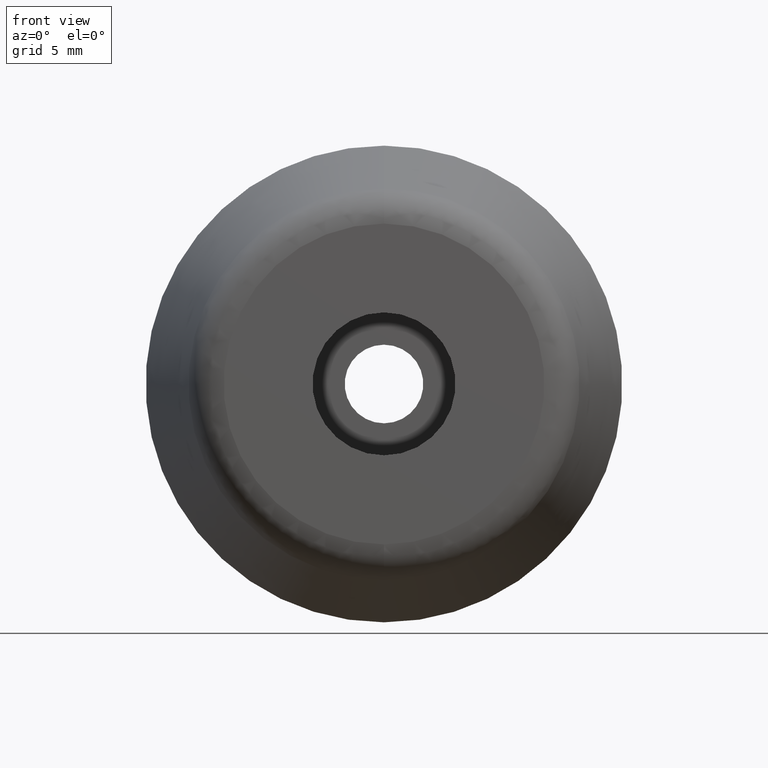
[diagram: clean part render]
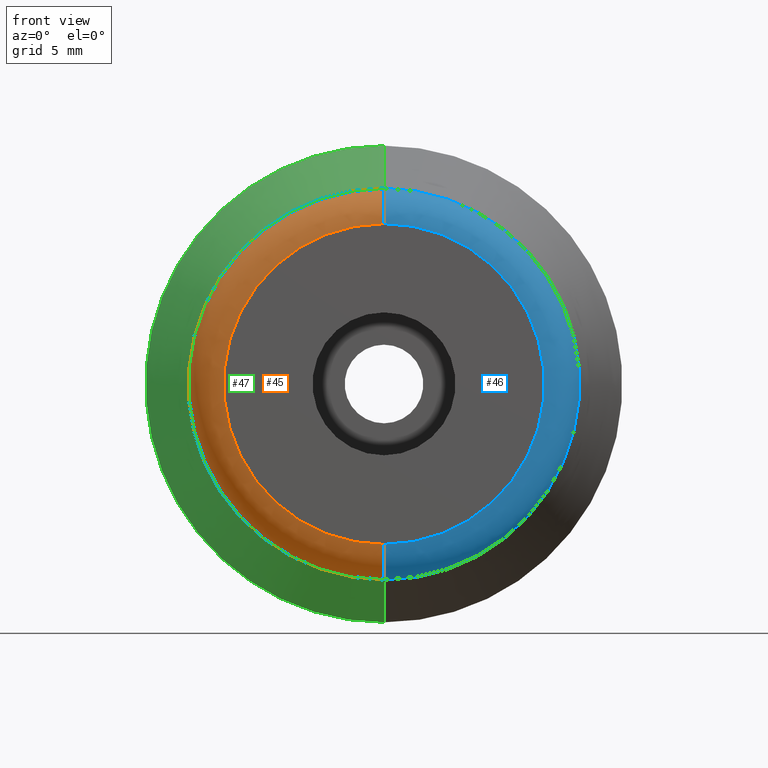
[diagram: same view with three faces highlighted in distinct colors, each labeled with its STEP entity id]
A machine part, front view with three faces highlighted in distinct colors.
Their STEP definitions:

[orange] entity #45 — the highlighted face is a freeform B-spline surface patch.
#45=ADVANCED_FACE('',(#105),#104,.T.);
#104=( BOUNDED_SURFACE() B_SPLINE_SURFACE( 2,2,((#192,#193,#194,#195,#196),(#197,#198,#199,#200,#201),(#202,#203,#204,#205,#206),(#207,#208,#209,#210,#211),(#212,#213,#214,#215,#216)), .UNSPECIFIED.,.F.,.F.,.F.) B_SPLINE_SURFACE_WITH_KNOTS((3,2,3),(3,2,3),(0.00000000000E+00,5.00000000000E-01,1.00000000000E+00),(0.00000000000E+00,5.00000000000E-01,1.00000000000E+00), .UNSPECIFIED. ) GEOMETRIC_REPRESENTATION_ITEM() RATIONAL_B_SPLINE_SURFACE(((1.00000000000E+00,7.63019982473E-01,1.00000000000E+00,7.63019982473E-01,1.00000000000E+00),(7.07106781187E-01,5.39536603787E-01,7.07106781187E-01,5.39536603787E-01,7.07106781187E-01),(1.00000000000E+00,7.63019982473E-01,1.00000000000E+00,7.63019982473E-01,1.00000000000E+00),(7.07106781187E-01,5.39536603787E-01,7.07106781187E-01,5.39536603787E-01,7.07106781187E-01),(1.00000000000E+00,7.63019982473E-01,1.00000000000E+00,7.63019982473E-01,1.00000000000E+00))) REPRESENTATION_ITEM('') SURFACE() );
#105=FACE_OUTER_BOUND('',#217,.T.);
#192=CARTESIAN_POINT('',(-1.14136079967E-14,-1.07465984810E+01,8.20890025317E+00));
#193=CARTESIAN_POINT('',(-1.13880259389E-14,-1.20000000000E+01,8.00000000000E+00));
#194=CARTESIAN_POINT('',(-1.12324163567E-14,-1.20000000000E+01,6.72930936743E+00));
#195=CARTESIAN_POINT('',(-1.10768067744E-14,-1.20000000000E+01,5.45861873485E+00));
#196=CARTESIAN_POINT('',(-1.10512247167E-14,-1.07465984810E+01,5.24971848168E+00));
#197=CARTESIAN_POINT('',(-8.20890025317E+00,-1.07465984810E+01,8.20890025317E+00));
#198=CARTESIAN_POINT('',(-8.00000000000E+00,-1.20000000000E+01,8.00000000000E+00));
#199=CARTESIAN_POINT('',(-6.72930936743E+00,-1.20000000000E+01,6.72930936743E+00));
#200=CARTESIAN_POINT('',(-5.45861873485E+00,-1.20000000000E+01,5.45861873485E+00));
#201=CARTESIAN_POINT('',(-5.24971848168E+00,-1.07465984810E+01,5.24971848168E+00));
#202=CARTESIAN_POINT('',(-8.20890025317E+00,-1.07465984810E+01,-5.02616969815E-16));
#203=CARTESIAN_POINT('',(-8.00000000000E+00,-1.20000000000E+01,-4.89826363399E-16));
#204=CARTESIAN_POINT('',(-6.72930936743E+00,-1.20000000000E+01,-4.12024141954E-16));
#205=CARTESIAN_POINT('',(-5.45861873485E+00,-1.20000000000E+01,-3.34221920509E-16));
#206=CARTESIAN_POINT('',(-5.24971848168E+00,-1.07465984810E+01,-3.21431314094E-16));
#207=CARTESIAN_POINT('',(-8.20890025317E+00,-1.07465984810E+01,-8.20890025317E+00));
#208=CARTESIAN_POINT('',(-8.00000000000E+00,-1.20000000000E+01,-8.00000000000E+00));
#209=CARTESIAN_POINT('',(-6.72930936743E+00,-1.20000000000E+01,-6.72930936743E+00));
#210=CARTESIAN_POINT('',(-5.45861873485E+00,-1.20000000000E+01,-5.45861873485E+00));
#211=CARTESIAN_POINT('',(-5.24971848168E+00,-1.07465984810E+01,-5.24971848168E+00));
#212=CARTESIAN_POINT('',(-1.04083740570E-14,-1.07465984810E+01,-8.20890025317E+00));
#213=CARTESIAN_POINT('',(-1.04083732121E-14,-1.20000000000E+01,-8.00000000000E+00));
#214=CARTESIAN_POINT('',(-1.04083680728E-14,-1.20000000000E+01,-6.72930936743E+00));
#215=CARTESIAN_POINT('',(-1.04083629334E-14,-1.20000000000E+01,-5.45861873485E+00));
#216=CARTESIAN_POINT('',(-1.04083620885E-14,-1.07465984810E+01,-5.24971848168E+00));
#217=EDGE_LOOP('',(#296,#297,#298,#299));
#296=ORIENTED_EDGE('',*,*,#325,.F.);
#297=ORIENTED_EDGE('',*,*,#334,.F.);
#298=ORIENTED_EDGE('',*,*,#335,.T.);
#299=ORIENTED_EDGE('',*,*,#336,.T.);
#325=EDGE_CURVE('',#371,#370,#378,.T.);
#334=EDGE_CURVE('',#438,#371,#439,.T.);
#335=EDGE_CURVE('',#438,#445,#446,.T.);
#336=EDGE_CURVE('',#445,#370,#452,.T.);
#370=VERTEX_POINT('',#508);
#371=VERTEX_POINT('',#509);
#378=CIRCLE('',#517,6.72930936743E+00);
#438=VERTEX_POINT('',#552);
#439=(BOUNDED_CURVE() B_SPLINE_CURVE(2,(#553,#554,#555),.UNSPECIFIED.,.F.,.F.) B_SPLINE_CURVE_WITH_KNOTS((3,3),(0.00000000000E+00,5.00000000000E-01),.UNSPECIFIED.) CURVE() GEOMETRIC_REPRESENTATION_ITEM() RATIONAL_B_SPLINE_CURVE((1.00000000000E+00,7.63019982473E-01,1.00000000000E+00)) REPRESENTATION_ITEM('') );
#445=VERTEX_POINT('',#556);
#446=CIRCLE('',#560,8.20890025317E+00);
#452=(BOUNDED_CURVE() B_SPLINE_CURVE(3,(#561,#562,#563,#564,#565),.UNSPECIFIED.,.F.,.F.) B_SPLINE_CURVE_WITH_KNOTS((4,1,4),(0.00000000000E+00,2.50000002220E-01,5.00000003958E-01),.UNSPECIFIED.) CURVE() GEOMETRIC_REPRESENTATION_ITEM() RATIONAL_B_SPLINE_CURVE((1.00000000000E+00,1.00000000000E+00,1.00000000000E+00,1.00000000000E+00,1.00000000000E+00)) REPRESENTATION_ITEM('') );
#508=CARTESIAN_POINT('',(-1.06581410364E-14,-1.20000000000E+01,-6.72930936743E+00));
#509=CARTESIAN_POINT('',(-1.06581410364E-14,-1.20000000000E+01,6.72930936743E+00));
#514=CARTESIAN_POINT('',(-1.06581410364E-14,-1.20000000000E+01,0.00000000000E+00));
#515=DIRECTION('',(0.00000000000E+00,-1.00000000000E+00,-0.00000000000E+00));
#516=DIRECTION('',(-1.22460635382E-16,0.00000000000E+00,-1.00000000000E+00));
#517=AXIS2_PLACEMENT_3D('',#514,#515,#516);
#552=CARTESIAN_POINT('',(-1.00660220899E-14,-1.07465984810E+01,8.20890025317E+00));
#553=CARTESIAN_POINT('',(-1.14136079967E-14,-1.07465984810E+01,8.20890025317E+00));
#554=CARTESIAN_POINT('',(-1.13880259389E-14,-1.20000000000E+01,8.00000000000E+00));
#555=CARTESIAN_POINT('',(-1.12324163567E-14,-1.20000000000E+01,6.72930936743E+00));
#556=CARTESIAN_POINT('',(-1.06581410364E-14,-1.07465984810E+01,-8.20890025317E+00));
#557=CARTESIAN_POINT('',(-1.06581410364E-14,-1.07465984810E+01,0.00000000000E+00));
#558=DIRECTION('',(0.00000000000E+00,-1.00000000000E+00,-0.00000000000E+00));
#559=DIRECTION('',(-1.22460635382E-16,0.00000000000E+00,-1.00000000000E+00));
#560=AXIS2_PLACEMENT_3D('',#557,#558,#559);
#561=CARTESIAN_POINT('',(-8.88178419700E-15,-1.07465984810E+01,-8.20890025317E+00));
#562=CARTESIAN_POINT('',(-8.99928915500E-15,-1.10910034755E+01,-8.15365053234E+00));
#563=CARTESIAN_POINT('',(-9.31784344406E-15,-1.17424972966E+01,-7.78186247308E+00));
#564=CARTESIAN_POINT('',(-9.64492080273E-15,-1.20021218469E+01,-7.07811134348E+00));
#565=CARTESIAN_POINT('',(-9.76996261117E-15,-1.20000000000E+01,-6.72930935207E+00));

[blue] entity #46 — the highlighted face is a freeform B-spline surface patch.
#46=ADVANCED_FACE('',(#115),#114,.T.);
#114=( BOUNDED_SURFACE() B_SPLINE_SURFACE( 2,2,((#218,#219,#220,#221,#222),(#223,#224,#225,#226,#227),(#228,#229,#230,#231,#232),(#233,#234,#235,#236,#237),(#238,#239,#240,#241,#242)), .UNSPECIFIED.,.F.,.F.,.F.) B_SPLINE_SURFACE_WITH_KNOTS((3,2,3),(3,2,3),(0.00000000000E+00,5.00000000000E-01,1.00000000000E+00),(0.00000000000E+00,5.00000000000E-01,1.00000000000E+00), .UNSPECIFIED. ) GEOMETRIC_REPRESENTATION_ITEM() RATIONAL_B_SPLINE_SURFACE(((1.00000000000E+00,7.63019982473E-01,1.00000000000E+00,7.63019982473E-01,1.00000000000E+00),(7.07106781187E-01,5.39536603787E-01,7.07106781187E-01,5.39536603787E-01,7.07106781187E-01),(1.00000000000E+00,7.63019982473E-01,1.00000000000E+00,7.63019982473E-01,1.00000000000E+00),(7.07106781187E-01,5.39536603787E-01,7.07106781187E-01,5.39536603787E-01,7.07106781187E-01),(1.00000000000E+00,7.63019982473E-01,1.00000000000E+00,7.63019982473E-01,1.00000000000E+00))) REPRESENTATION_ITEM('') SURFACE() );
#115=FACE_OUTER_BOUND('',#243,.T.);
#218=CARTESIAN_POINT('',(-1.04083740570E-14,-1.07465984810E+01,-8.20890025317E+00));
#219=CARTESIAN_POINT('',(-1.04083732121E-14,-1.20000000000E+01,-8.00000000000E+00));
#220=CARTESIAN_POINT('',(-1.04083680728E-14,-1.20000000000E+01,-6.72930936743E+00));
#221=CARTESIAN_POINT('',(-1.04083629334E-14,-1.20000000000E+01,-5.45861873485E+00));
#222=CARTESIAN_POINT('',(-1.04083620885E-14,-1.07465984810E+01,-5.24971848168E+00));
#223=CARTESIAN_POINT('',(8.20890025317E+00,-1.07465984810E+01,-8.20890025317E+00));
#224=CARTESIAN_POINT('',(8.00000000000E+00,-1.20000000000E+01,-8.00000000000E+00));
#225=CARTESIAN_POINT('',(6.72930936743E+00,-1.20000000000E+01,-6.72930936743E+00));
#226=CARTESIAN_POINT('',(5.45861873485E+00,-1.20000000000E+01,-5.45861873485E+00));
#227=CARTESIAN_POINT('',(5.24971848168E+00,-1.07465984810E+01,-5.24971848168E+00));
#228=CARTESIAN_POINT('',(8.20890025317E+00,-1.07465984810E+01,-5.02683372142E-16));
#229=CARTESIAN_POINT('',(8.00000000000E+00,-1.20000000000E+01,-4.89891075919E-16));
#230=CARTESIAN_POINT('',(6.72930936743E+00,-1.20000000000E+01,-4.12078575775E-16));
#231=CARTESIAN_POINT('',(5.45861873485E+00,-1.20000000000E+01,-3.34266075631E-16));
#232=CARTESIAN_POINT('',(5.24971848168E+00,-1.07465984810E+01,-3.21473779408E-16));
#233=CARTESIAN_POINT('',(8.20890025317E+00,-1.07465984810E+01,8.20890025317E+00));
#234=CARTESIAN_POINT('',(8.00000000000E+00,-1.20000000000E+01,8.00000000000E+00));
#235=CARTESIAN_POINT('',(6.72930936743E+00,-1.20000000000E+01,6.72930936743E+00));
#236=CARTESIAN_POINT('',(5.45861873485E+00,-1.20000000000E+01,5.45861873485E+00));
#237=CARTESIAN_POINT('',(5.24971848168E+00,-1.07465984810E+01,5.24971848168E+00));
#238=CARTESIAN_POINT('',(-9.40300731274E-15,-1.07465984810E+01,8.20890025317E+00));
#239=CARTESIAN_POINT('',(-9.42859106028E-15,-1.20000000000E+01,8.00000000000E+00));
#240=CARTESIAN_POINT('',(-9.58421092122E-15,-1.20000000000E+01,6.72930936743E+00));
#241=CARTESIAN_POINT('',(-9.73983078216E-15,-1.20000000000E+01,5.45861873485E+00));
#242=CARTESIAN_POINT('',(-9.76541452970E-15,-1.07465984810E+01,5.24971848168E+00));
#243=EDGE_LOOP('',(#300,#301,#302,#303));
#300=ORIENTED_EDGE('',*,*,#337,.T.);
#301=ORIENTED_EDGE('',*,*,#334,.T.);
#302=ORIENTED_EDGE('',*,*,#324,.F.);
#303=ORIENTED_EDGE('',*,*,#336,.F.);
#324=EDGE_CURVE('',#370,#371,#372,.T.);
#334=EDGE_CURVE('',#438,#371,#439,.T.);
#336=EDGE_CURVE('',#445,#370,#452,.T.);
#337=EDGE_CURVE('',#445,#438,#458,.T.);
#370=VERTEX_POINT('',#508);
#371=VERTEX_POINT('',#509);
#372=CIRCLE('',#513,6.72930936743E+00);
#438=VERTEX_POINT('',#552);
#439=(BOUNDED_CURVE() B_SPLINE_CURVE(2,(#553,#554,#555),.UNSPECIFIED.,.F.,.F.) B_SPLINE_CURVE_WITH_KNOTS((3,3),(0.00000000000E+00,5.00000000000E-01),.UNSPECIFIED.) CURVE() GEOMETRIC_REPRESENTATION_ITEM() RATIONAL_B_SPLINE_CURVE((1.00000000000E+00,7.63019982473E-01,1.00000000000E+00)) REPRESENTATION_ITEM('') );
#445=VERTEX_POINT('',#556);
#452=(BOUNDED_CURVE() B_SPLINE_CURVE(3,(#561,#562,#563,#564,#565),.UNSPECIFIED.,.F.,.F.) B_SPLINE_CURVE_WITH_KNOTS((4,1,4),(0.00000000000E+00,2.50000002220E-01,5.00000003958E-01),.UNSPECIFIED.) CURVE() GEOMETRIC_REPRESENTATION_ITEM() RATIONAL_B_SPLINE_CURVE((1.00000000000E+00,1.00000000000E+00,1.00000000000E+00,1.00000000000E+00,1.00000000000E+00)) REPRESENTATION_ITEM('') );
#458=CIRCLE('',#569,8.20890025317E+00);
#508=CARTESIAN_POINT('',(-1.06581410364E-14,-1.20000000000E+01,-6.72930936743E+00));
#509=CARTESIAN_POINT('',(-1.06581410364E-14,-1.20000000000E+01,6.72930936743E+00));
#510=CARTESIAN_POINT('',(-1.06581410364E-14,-1.20000000000E+01,0.00000000000E+00));
#511=DIRECTION('',(0.00000000000E+00,-1.00000000000E+00,-0.00000000000E+00));
#512=DIRECTION('',(-1.22460635382E-16,0.00000000000E+00,-1.00000000000E+00));
#513=AXIS2_PLACEMENT_3D('',#510,#511,#512);
#552=CARTESIAN_POINT('',(-1.00660220899E-14,-1.07465984810E+01,8.20890025317E+00));
#553=CARTESIAN_POINT('',(-1.14136079967E-14,-1.07465984810E+01,8.20890025317E+00));
#554=CARTESIAN_POINT('',(-1.13880259389E-14,-1.20000000000E+01,8.00000000000E+00));
#555=CARTESIAN_POINT('',(-1.12324163567E-14,-1.20000000000E+01,6.72930936743E+00));
#556=CARTESIAN_POINT('',(-1.06581410364E-14,-1.07465984810E+01,-8.20890025317E+00));
#561=CARTESIAN_POINT('',(-8.88178419700E-15,-1.07465984810E+01,-8.20890025317E+00));
#562=CARTESIAN_POINT('',(-8.99928915500E-15,-1.10910034755E+01,-8.15365053234E+00));
#563=CARTESIAN_POINT('',(-9.31784344406E-15,-1.17424972966E+01,-7.78186247308E+00));
#564=CARTESIAN_POINT('',(-9.64492080273E-15,-1.20021218469E+01,-7.07811134348E+00));
#565=CARTESIAN_POINT('',(-9.76996261117E-15,-1.20000000000E+01,-6.72930935207E+00));
#566=CARTESIAN_POINT('',(-1.06581410364E-14,-1.07465984810E+01,0.00000000000E+00));
#567=DIRECTION('',(0.00000000000E+00,-1.00000000000E+00,-0.00000000000E+00));
#568=DIRECTION('',(-1.22460635382E-16,0.00000000000E+00,-1.00000000000E+00));
#569=AXIS2_PLACEMENT_3D('',#566,#567,#568);

[green] entity #47 — the highlighted face is a freeform B-spline surface patch.
#47=ADVANCED_FACE('',(#125),#124,.T.);
#124=( BOUNDED_SURFACE() B_SPLINE_SURFACE( 2,1,((#244,#245),(#246,#247),(#248,#249),(#250,#251),(#252,#253)), .UNSPECIFIED.,.F.,.F.,.F.) B_SPLINE_SURFACE_WITH_KNOTS((3,2,3),(2,2),(0.00000000000E+00,5.00000000000E-01,1.00000000000E+00),(0.00000000000E+00,1.00000000000E+00), .UNSPECIFIED. ) GEOMETRIC_REPRESENTATION_ITEM() RATIONAL_B_SPLINE_SURFACE(((1.00000000000E+00,1.00000000000E+00),(7.07106781187E-01,7.07106781187E-01),(1.00000000000E+00,1.00000000000E+00),(7.07106781187E-01,7.07106781187E-01),(1.00000000000E+00,1.00000000000E+00))) REPRESENTATION_ITEM('') SURFACE() );
#125=FACE_OUTER_BOUND('',#254,.T.);
#244=CARTESIAN_POINT('',(-1.26687417203E-14,-1.07465984810E+01,-8.20890025317E+00));
#245=CARTESIAN_POINT('',(-1.31074346347E-14,0.00000000000E+00,-1.00000000000E+01));
#246=CARTESIAN_POINT('',(-8.20890025317E+00,-1.07465984810E+01,-8.20890025317E+00));
#247=CARTESIAN_POINT('',(-1.00000000000E+01,0.00000000000E+00,-1.00000000000E+01));
#248=CARTESIAN_POINT('',(-8.20890025317E+00,-1.07465984810E+01,1.50795051294E-15));
#249=CARTESIAN_POINT('',(-1.00000000000E+01,0.00000000000E+00,1.83697019872E-15));
#250=CARTESIAN_POINT('',(-8.20890025317E+00,-1.07465984810E+01,8.20890025317E+00));
#251=CARTESIAN_POINT('',(-1.00000000000E+01,0.00000000000E+00,1.00000000000E+01));
#252=CARTESIAN_POINT('',(-9.65284069444E-15,-1.07465984810E+01,8.20890025317E+00));
#253=CARTESIAN_POINT('',(-9.43349423725E-15,0.00000000000E+00,1.00000000000E+01));
#254=EDGE_LOOP('',(#304,#305,#306,#307));
#304=ORIENTED_EDGE('',*,*,#328,.T.);
#305=ORIENTED_EDGE('',*,*,#338,.F.);
#306=ORIENTED_EDGE('',*,*,#335,.F.);
#307=ORIENTED_EDGE('',*,*,#339,.T.);
#328=EDGE_CURVE('',#398,#399,#400,.T.);
#335=EDGE_CURVE('',#438,#445,#446,.T.);
#338=EDGE_CURVE('',#445,#399,#464,.T.);
#339=EDGE_CURVE('',#438,#398,#470,.T.);
#398=VERTEX_POINT('',#528);
#399=VERTEX_POINT('',#529);
#400=CIRCLE('',#533,1.00000000000E+01);
#438=VERTEX_POINT('',#552);
#445=VERTEX_POINT('',#556);
#446=CIRCLE('',#560,8.20890025317E+00);
#464=(BOUNDED_CURVE() B_SPLINE_CURVE(1,(#570,#571),.UNSPECIFIED.,.F.,.F.) B_SPLINE_CURVE_WITH_KNOTS((2,2),(0.00000000000E+00,1.00000000000E+00),.UNSPECIFIED.) CURVE() GEOMETRIC_REPRESENTATION_ITEM() RATIONAL_B_SPLINE_CURVE((1.00000000000E+00,1.00000000000E+00)) REPRESENTATION_ITEM('') );
#470=(BOUNDED_CURVE() B_SPLINE_CURVE(1,(#572,#573),.UNSPECIFIED.,.F.,.F.) B_SPLINE_CURVE_WITH_KNOTS((2,2),(0.00000000000E+00,1.00000000000E+00),.UNSPECIFIED.) CURVE() GEOMETRIC_REPRESENTATION_ITEM() RATIONAL_B_SPLINE_CURVE((7.50000000000E-01,7.50000000000E-01)) REPRESENTATION_ITEM('') );
#528=CARTESIAN_POINT('',(-1.00660220899E-14,0.00000000000E+00,1.00000000000E+01));
#529=CARTESIAN_POINT('',(-1.06581410364E-14,0.00000000000E+00,-1.00000000000E+01));
#530=CARTESIAN_POINT('',(-1.06581410364E-14,0.00000000000E+00,0.00000000000E+00));
#531=DIRECTION('',(0.00000000000E+00,-1.00000000000E+00,-0.00000000000E+00));
#532=DIRECTION('',(-1.22460635382E-16,0.00000000000E+00,-1.00000000000E+00));
#533=AXIS2_PLACEMENT_3D('',#530,#531,#532);
#552=CARTESIAN_POINT('',(-1.00660220899E-14,-1.07465984810E+01,8.20890025317E+00));
#556=CARTESIAN_POINT('',(-1.06581410364E-14,-1.07465984810E+01,-8.20890025317E+00));
#557=CARTESIAN_POINT('',(-1.06581410364E-14,-1.07465984810E+01,0.00000000000E+00));
#558=DIRECTION('',(0.00000000000E+00,-1.00000000000E+00,-0.00000000000E+00));
#559=DIRECTION('',(-1.22460635382E-16,0.00000000000E+00,-1.00000000000E+00));
#560=AXIS2_PLACEMENT_3D('',#557,#558,#559);
#570=CARTESIAN_POINT('',(-1.26686753180E-14,-1.07465984810E+01,-8.20890025317E+00));
#571=CARTESIAN_POINT('',(-1.31073537440E-14,0.00000000000E+00,-1.00000000000E+01));
#572=CARTESIAN_POINT('',(-8.28966525053E-15,-1.07465984810E+01,8.20890025317E+00));
#573=CARTESIAN_POINT('',(-7.69754630407E-15,0.00000000000E+00,1.00000000000E+01));